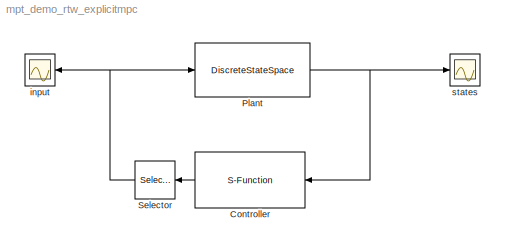
MODEL mpt_demo_rtw_explicitmpc
KIND model
BLOCK [S-Function] Controller
  EnableBusSupport = off
  FunctionName = mpt_getInput_sfunc
  Ports = [1, 1]
  SID = 3
BLOCK [DiscreteStateSpace] Plant
  A = [0.5403   -0.8415; 0.8415    0.5403]
  B = [ -0.4597; 0.8415]
  C = eye(2)
  D = [0;0]
  SID = 1
  X0 = [-2;3]
BLOCK [Selector] Selector
  IndexOptions = Index vector (dialog)
  Indices = 1
  InputPortWidth = 5
  OutputSizes = 1
  Ports = [1, 1]
  SID = 11
BLOCK [Scope] input
  DataFormat = StructureWithTime
  Floating = off
  NumInputPorts = 1
  Ports = [1]
  SID = 5
  SampleTime = 0
  SaveName = ScopeData1
  ShowLegends = off
BLOCK [Scope] states
  DataFormat = StructureWithTime
  Floating = off
  NumInputPorts = 1
  Ports = [1]
  SID = 4
  SampleTime = 0
  ShowLegends = off
LINE Controller:1 -> Selector:1
NET Plant:1 -> Controller:1, states:1
NET Selector:1 -> Plant:1, input:1
note: NET lines group one-source signal fan-out (src -> all destinations, sorted); 1:1 wires keep LINE
